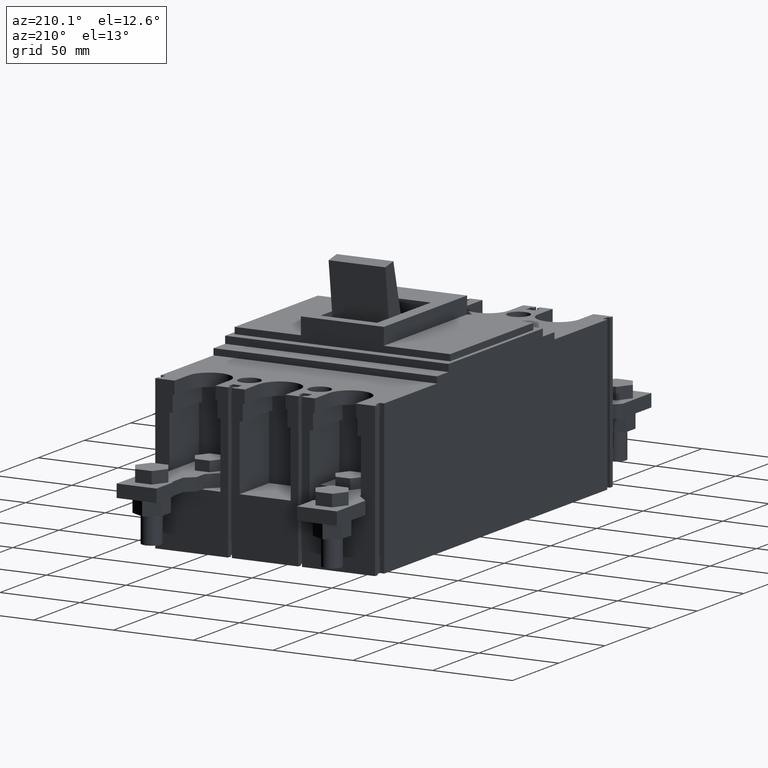
[diagram: clean part render]
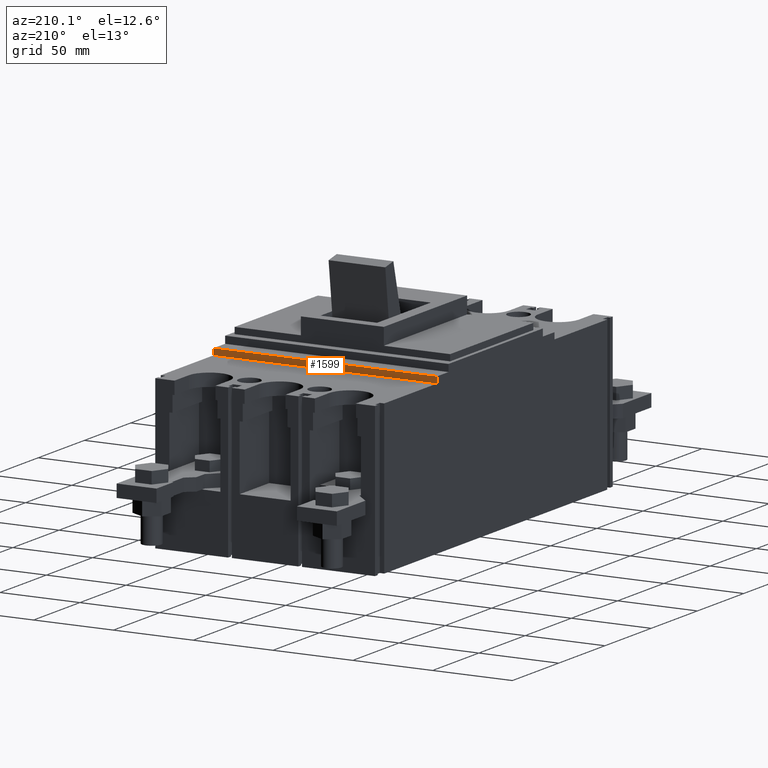
[diagram: same view with one face highlighted and labeled with its STEP entity id]
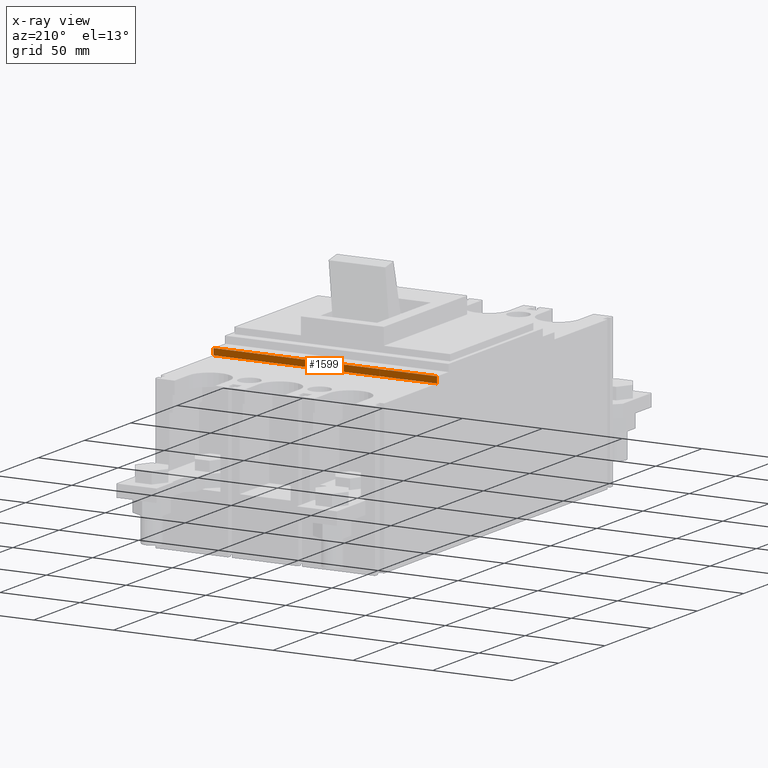
[diagram: x-ray of the same camera — body ghosted, the highlighted face saturated]
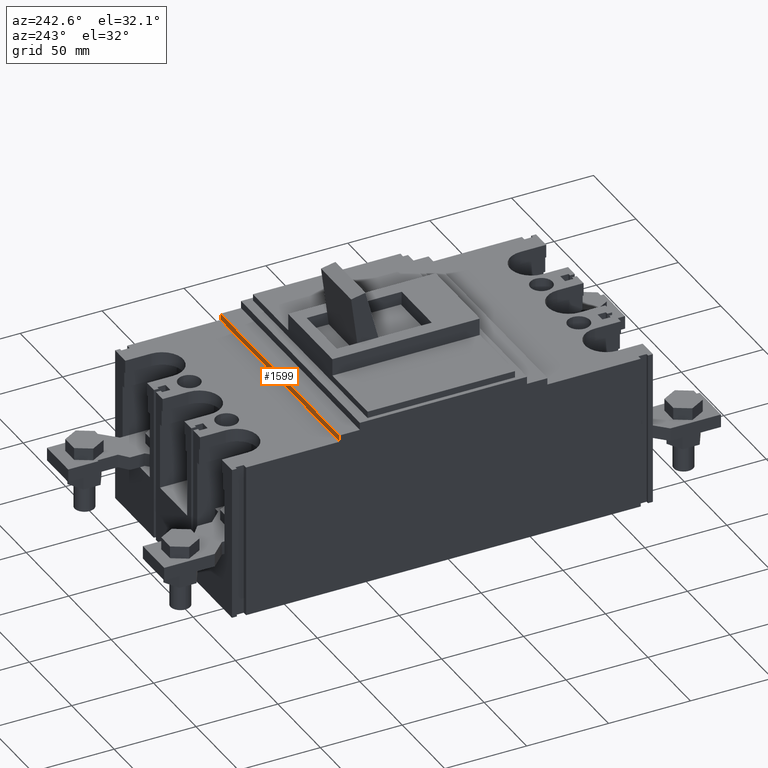
[diagram: same view with one face highlighted and labeled with its STEP entity id]
A machine part, auxiliary view. The second image highlights one B-rep face of the part: STEP entity #1599.
The next image is the same camera in x-ray: the body ghosted, the highlighted face saturated — about 0% of this face is hidden behind the body in this view.
A second angle (auxiliary view) of the same face is appended — the face is thin or edge-on in the first view.
In plain terms, the highlighted planar face has unit normal (0, 1, -0).
Its self-contained STEP definition (entity closure, byte-faithful):
#530 = EDGE_CURVE ( 'NONE', #692, #13249, #13346, .T. ) ;
#692 = VERTEX_POINT ( 'NONE', #12688 ) ;
#1599 = ADVANCED_FACE ( 'NONE', ( #8050 ), #10540, .T. ) ;
#1693 = CARTESIAN_POINT ( 'NONE',  ( 0.0000000000000000000, 6.732283464566929609, 3.877952755905512028 ) ) ;
#1898 = ORIENTED_EDGE ( 'NONE', *, *, #530, .F. ) ;
#2802 = VECTOR ( 'NONE', #16555, 39.37007874015748143 ) ;
#3754 = ORIENTED_EDGE ( 'NONE', *, *, #14756, .T. ) ;
#4119 = CARTESIAN_POINT ( 'NONE',  ( 2.755905511811024056, 6.732283464566929609, 0.0000000000000000000 ) ) ;
#4575 = CARTESIAN_POINT ( 'NONE',  ( -2.755905511811024056, 6.732283464566929609, 3.720472440944881942 ) ) ;
#5467 = CARTESIAN_POINT ( 'NONE',  ( -2.755905511811024056, 6.732283464566929609, 3.877952755905512028 ) ) ;
#5653 = VERTEX_POINT ( 'NONE', #11592 ) ;
#6158 = DIRECTION ( 'NONE',  ( 0.0000000000000000000, 0.0000000000000000000, 1.000000000000000000 ) ) ;
#7521 = CARTESIAN_POINT ( 'NONE',  ( -2.755905511811024056, 6.732283464566929609, 3.720472440944881942 ) ) ;
#7543 = EDGE_LOOP ( 'NONE', ( #3754, #10062, #1898, #8772 ) ) ;
#7612 = CARTESIAN_POINT ( 'NONE',  ( -2.755905511811024056, 6.732283464566929609, 3.720472440944881942 ) ) ;
#7669 = EDGE_CURVE ( 'NONE', #11005, #13249, #11358, .T. ) ;
#8050 = FACE_OUTER_BOUND ( 'NONE', #7543, .T. ) ;
#8772 = ORIENTED_EDGE ( 'NONE', *, *, #13851, .F. ) ;
#9388 = VECTOR ( 'NONE', #17468, 39.37007874015748143 ) ;
#9499 = VECTOR ( 'NONE', #11807, 39.37007874015748143 ) ;
#9712 = DIRECTION ( 'NONE',  ( -0.0000000000000000000, -0.0000000000000000000, 1.000000000000000000 ) ) ;
#10062 = ORIENTED_EDGE ( 'NONE', *, *, #7669, .T. ) ;
#10540 = PLANE ( 'NONE',  #13144 ) ;
#11005 = VERTEX_POINT ( 'NONE', #7521 ) ;
#11358 = LINE ( 'NONE', #16498, #2802 ) ;
#11592 = CARTESIAN_POINT ( 'NONE',  ( 2.755905511811024056, 6.732283464566929609, 3.720472440944881942 ) ) ;
#11807 = DIRECTION ( 'NONE',  ( -1.000000000000000000, -0.0000000000000000000, 0.0000000000000000000 ) ) ;
#11908 = DIRECTION ( 'NONE',  ( 0.0000000000000000000, 1.000000000000000000, -0.0000000000000000000 ) ) ;
#12343 = LINE ( 'NONE', #4575, #9388 ) ;
#12688 = CARTESIAN_POINT ( 'NONE',  ( 2.755905511811024056, 6.732283464566929609, 3.877952755905512028 ) ) ;
#13144 = AXIS2_PLACEMENT_3D ( 'NONE', #7612, #11908, #6158 ) ;
#13249 = VERTEX_POINT ( 'NONE', #5467 ) ;
#13346 = LINE ( 'NONE', #1693, #9499 ) ;
#13851 = EDGE_CURVE ( 'NONE', #5653, #692, #15661, .T. ) ;
#14053 = VECTOR ( 'NONE', #9712, 39.37007874015748143 ) ;
#14756 = EDGE_CURVE ( 'NONE', #5653, #11005, #12343, .T. ) ;
#15661 = LINE ( 'NONE', #4119, #14053 ) ;
#16498 = CARTESIAN_POINT ( 'NONE',  ( -2.755905511811024056, 6.732283464566929609, 0.0000000000000000000 ) ) ;
#16555 = DIRECTION ( 'NONE',  ( -0.0000000000000000000, -0.0000000000000000000, 1.000000000000000000 ) ) ;
#17468 = DIRECTION ( 'NONE',  ( -1.000000000000000000, 0.0000000000000000000, -0.0000000000000000000 ) ) ;